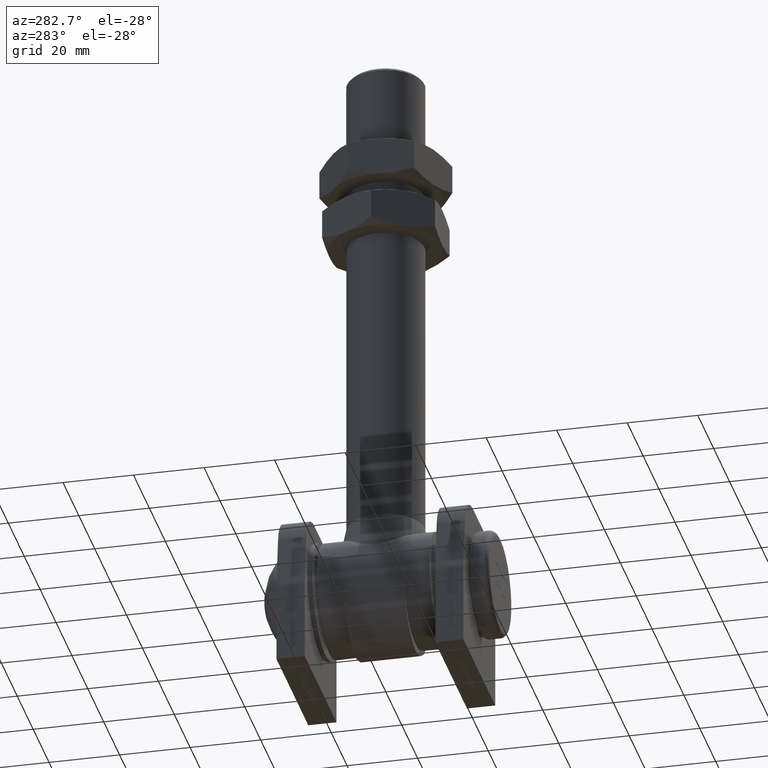
[diagram: clean part render]
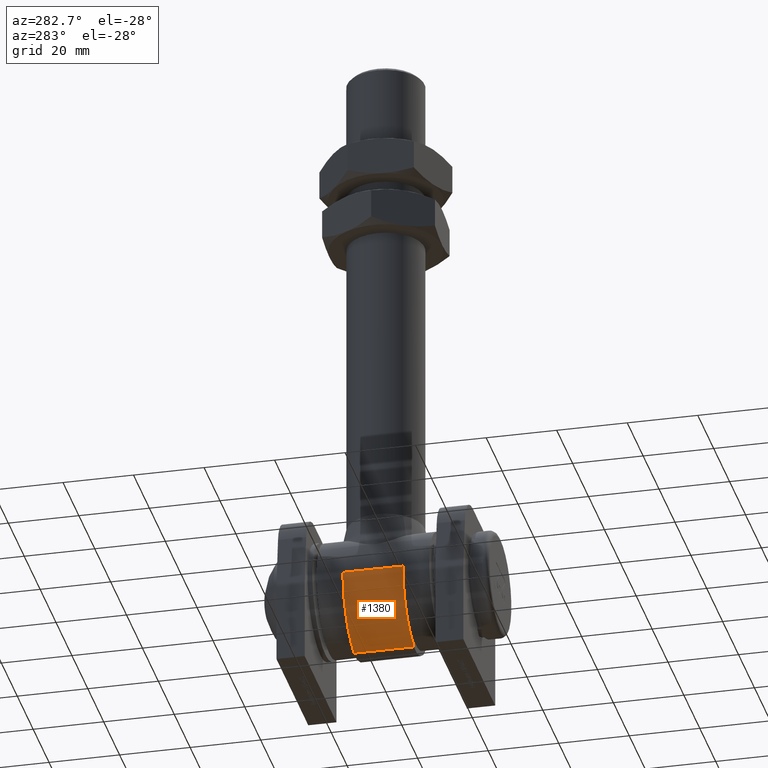
[diagram: same view with one face highlighted and labeled with its STEP entity id]
A machine part, auxiliary view. The second image highlights one B-rep face of the part: STEP entity #1380.
In plain terms, the highlighted cylindrical surface (partial cylindrical patch) has radius 18 mm, axis along (-0, -1, -0).
Its self-contained STEP definition (entity closure, byte-faithful):
#64 = VERTEX_POINT ( 'NONE', #4019 ) ;
#1380 = ADVANCED_FACE ( 'NONE', ( #12606 ), #12767, .T. ) ;
#2178 = DIRECTION ( 'NONE',  ( -0.000000000000000000, -1.000000000000000000, -0.000000000000000000 ) ) ;
#2208 = CARTESIAN_POINT ( 'NONE',  ( -16.25000000000000000, -8.500000000000000000, 4.597017211338538800E-14 ) ) ;
#2354 = ORIENTED_EDGE ( 'NONE', *, *, #10793, .T. ) ;
#2590 = CARTESIAN_POINT ( 'NONE',  ( -2.180699074897190837, -8.500000000000000000, -18.00933151116113606 ) ) ;
#2971 = AXIS2_PLACEMENT_3D ( 'NONE', #8014, #4632, #10405 ) ;
#3100 = EDGE_LOOP ( 'NONE', ( #3933, #8824, #2354, #13176 ) ) ;
#3205 = DIRECTION ( 'NONE',  ( -0.000000000000000000, -1.000000000000000000, 0.000000000000000000 ) ) ;
#3923 = EDGE_CURVE ( 'NONE', #7017, #14799, #10374, .T. ) ;
#3933 = ORIENTED_EDGE ( 'NONE', *, *, #3923, .F. ) ;
#3955 = DIRECTION ( 'NONE',  ( 0.000000000000000000, 0.000000000000000000, -1.000000000000000000 ) ) ;
#4019 = CARTESIAN_POINT ( 'NONE',  ( -16.25000000000000000, 8.500000000000000000, 4.575333167888828712E-14 ) ) ;
#4521 = DIRECTION ( 'NONE',  ( 0.000000000000000000, 0.000000000000000000, 1.000000000000000000 ) ) ;
#4632 = DIRECTION ( 'NONE',  ( -0.000000000000000000, -1.000000000000000000, 0.000000000000000000 ) ) ;
#4713 = CARTESIAN_POINT ( 'NONE',  ( -2.180699074897190837, 8.500000000000000000, -18.00933151116113606 ) ) ;
#4978 = AXIS2_PLACEMENT_3D ( 'NONE', #11463, #3205, #4521 ) ;
#6270 = CIRCLE ( 'NONE', #4978, 18.00000000000000000 ) ;
#6414 = VERTEX_POINT ( 'NONE', #4713 ) ;
#6650 = CARTESIAN_POINT ( 'NONE',  ( -16.25000000000000000, 8.500000000000000000, 4.597017211338538800E-14 ) ) ;
#6781 = AXIS2_PLACEMENT_3D ( 'NONE', #13072, #8515, #3955 ) ;
#6813 = LINE ( 'NONE', #6650, #11890 ) ;
#7017 = VERTEX_POINT ( 'NONE', #2208 ) ;
#7940 = EDGE_CURVE ( 'NONE', #6414, #14799, #8140, .T. ) ;
#8014 = CARTESIAN_POINT ( 'NONE',  ( 1.744559259917747518, -8.500000000000000000, -0.4425347910711014965 ) ) ;
#8140 = LINE ( 'NONE', #9081, #8341 ) ;
#8341 = VECTOR ( 'NONE', #2178, 1000.000000000000000 ) ;
#8515 = DIRECTION ( 'NONE',  ( -0.000000000000000000, -1.000000000000000000, -0.000000000000000000 ) ) ;
#8824 = ORIENTED_EDGE ( 'NONE', *, *, #9529, .F. ) ;
#9081 = CARTESIAN_POINT ( 'NONE',  ( -2.180699074897190837, 8.500000000000000000, -18.00933151116113606 ) ) ;
#9529 = EDGE_CURVE ( 'NONE', #64, #7017, #6813, .T. ) ;
#10001 = DIRECTION ( 'NONE',  ( -0.000000000000000000, -1.000000000000000000, -0.000000000000000000 ) ) ;
#10374 = CIRCLE ( 'NONE', #2971, 18.00000000000000000 ) ;
#10405 = DIRECTION ( 'NONE',  ( 0.000000000000000000, 0.000000000000000000, 1.000000000000000000 ) ) ;
#10793 = EDGE_CURVE ( 'NONE', #64, #6414, #6270, .T. ) ;
#11463 = CARTESIAN_POINT ( 'NONE',  ( 1.744559259917747518, 8.500000000000000000, -0.4425347910711014965 ) ) ;
#11890 = VECTOR ( 'NONE', #10001, 1000.000000000000000 ) ;
#12606 = FACE_OUTER_BOUND ( 'NONE', #3100, .T. ) ;
#12767 = CYLINDRICAL_SURFACE ( 'NONE', #6781, 18.00000000000000000 ) ;
#13072 = CARTESIAN_POINT ( 'NONE',  ( 1.744559259917747518, 8.500000000000000000, -0.4425347910711014965 ) ) ;
#13176 = ORIENTED_EDGE ( 'NONE', *, *, #7940, .T. ) ;
#14799 = VERTEX_POINT ( 'NONE', #2590 ) ;